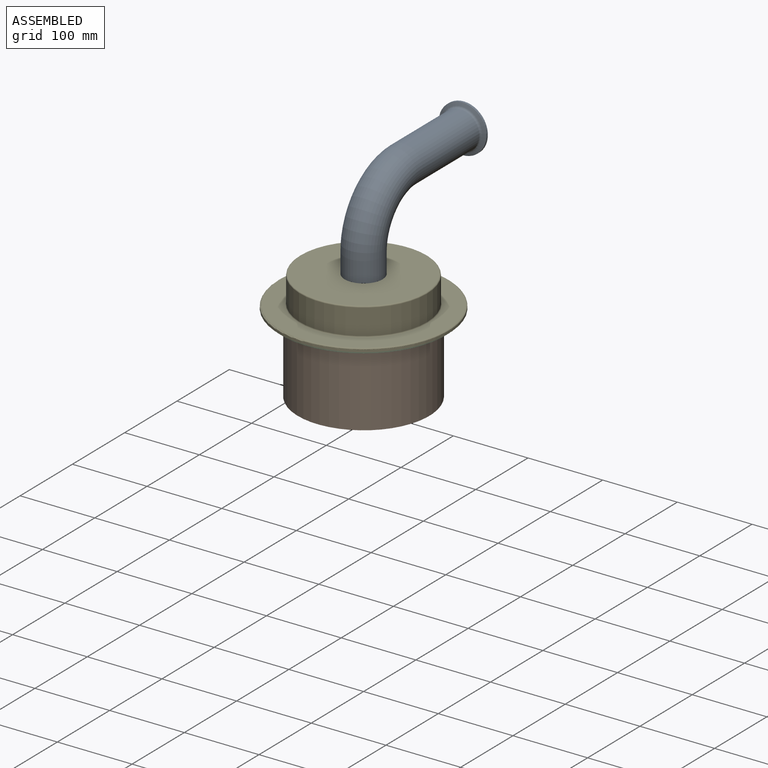
[diagram: assembled view]
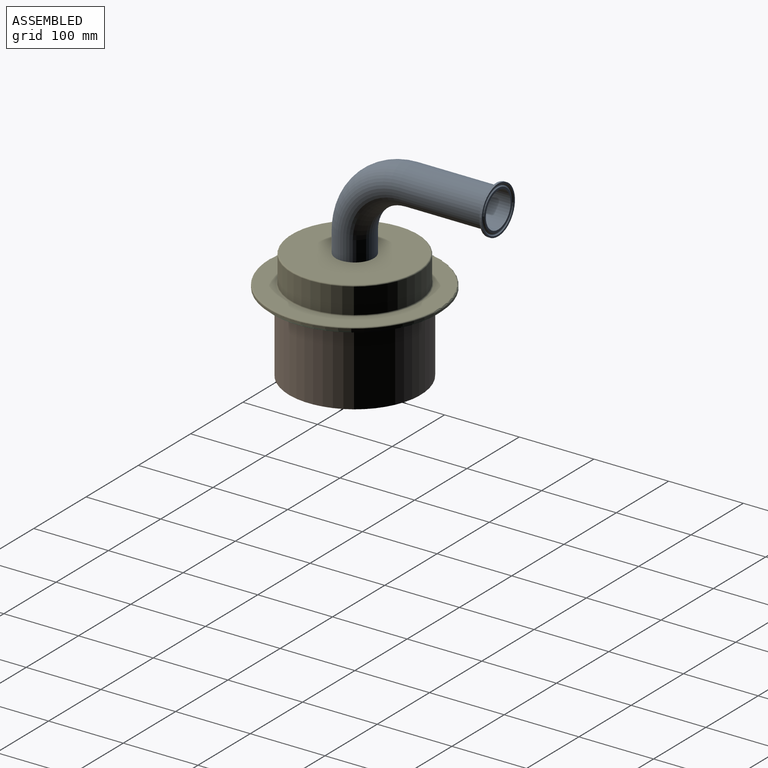
[diagram: assembled view, second angle]
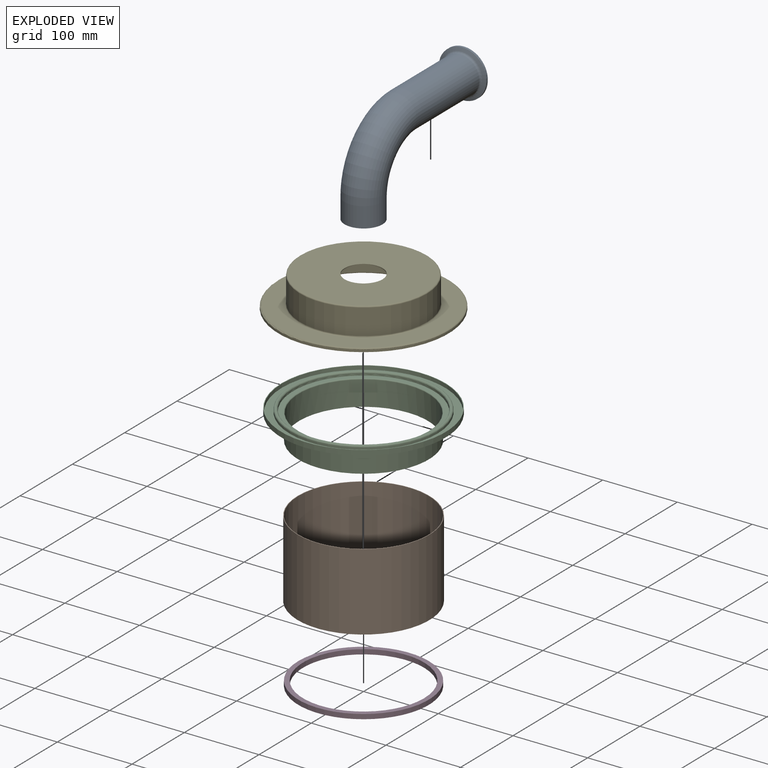
[diagram: exploded view]
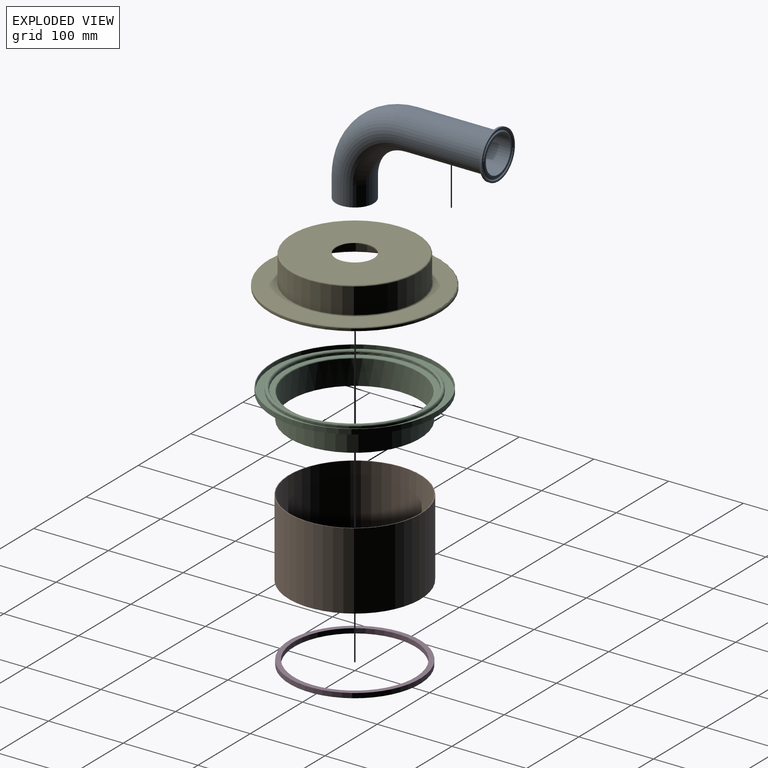
[diagram: exploded view, second angle]
ASSEMBLY  parts=5 mates=5
PART A: 17 faces, bbox 65.3x225.8x136.9 mm
  f0: plane 63.91x63.91mm, normal (0,-1,0), area 350.1mm2, adj f1,f9
  f1: torus R=30.16mm, axis (0,-1,0), area 172.1mm2, adj f0,f2
  f2: cone r=29.43mm half-angle=23deg, axis (0,-1,0), area 78.8mm2, adj f1,f3
  f3: torus R=28.17mm, axis (0,-1,0), area 494.2mm2, adj f2,f4
  f4: cone r=27.07mm half-angle=23deg, axis (0,1,0), area 72.4mm2, adj f3,f5
  f5: torus R=26.18mm, axis (0,-1,0), area 153.8mm2, adj f4,f6
  f6: plane 52.36x52.36mm, normal (0,-1,0), area 381mm2, adj f5,f11
  f7: torus R=28.57mm, axis (0,-1,0), area 636.9mm2, adj f8,f10
  f8: cone r=27.49mm half-angle=70deg, axis (0,-1,0), area 887.1mm2, adj f7,f9
  f9: cylinder r=31.95mm len=63.91mm, axis (0,-1,0), area 571.1mm2, adj f0,f8
  f10: cylinder r=25.4mm len=108.42mm, axis (0,1,0), area 17303.3mm2, adj f7,f15
  f11: cylinder r=23.75mm len=115.88mm, axis (0,1,0), area 17290.8mm2, adj f6,f12
  f12: torus R=76.2mm, axis (1,0,0), area 17860.8mm2, adj f11,f13
  f13: cylinder r=23.75mm len=47.5mm, axis (0,0,1), area 4025.2mm2, adj f12,f14
  f14: plane 50.8x50.8mm, normal (0,0,1), area 254.9mm2, adj f13,f16
  f15: torus R=76.2mm, axis (1,0,0), area 19102.4mm2, adj f10,f16
  f16: cylinder r=25.4mm len=50.8mm, axis (0,0,1), area 4305mm2, adj f14,f15
PART B: 5 faces, bbox 176.4x176.4x103.3 mm
  f0: cylinder r=87.39mm len=174.78mm, axis (0,0,1), area 55786.5mm2, adj f2,f3
  f1: cylinder r=88.21mm len=176.43mm, axis (0,0,1), area 57228.5mm2, adj f2,f4
  f2: plane 176.43x176.43mm, normal (0,0,1), area 455.4mm2, adj f0,f1
  f3: plane 174.78x174.78mm, normal (0,0,1), area 23991.7mm2, adj f0
  f4: plane 176.43x176.43mm, normal (0,0,-1), area 24447.1mm2, adj f1
PART C: 15 faces, bbox 220.2x220.2x39.4 mm
  f0: cylinder r=86.56mm len=173.13mm, axis (0,0,1), area 17959.3mm2, adj f12,f14
  f1: plane 193.17x193.17mm, normal (0,0,1), area 69.3mm2, adj f10,f11
  f2: cylinder r=110.08mm len=220.17mm, axis (0,0,1), area 4655.7mm2, adj f3,f4
  f3: plane 220.17x220.17mm, normal (0,0,-1), area 14079.4mm2, adj f2,f13
  f4: plane 220.17x220.17mm, normal (0,0,1), area 595mm2, adj f2,f6
  f5: cylinder r=98.87mm len=197.74mm, axis (0,0,1), area 1735.7mm2, adj f7,f11
  f6: cylinder r=109.22mm len=218.44mm, axis (0,0,1), area 3486.1mm2, adj f4,f7
  f7: plane 218.44x218.44mm, normal (0,0,1), area 6766.5mm2, adj f5,f6
  f8: cylinder r=94.18mm len=188.37mm, axis (0,0,1), area 1653.4mm2, adj f9,f10
  f9: plane 188.37x188.37mm, normal (0,0,1), area 3631.1mm2, adj f8,f12
  f10: torus R=96.47mm, axis (0,0,-1), area 2143.7mm2, adj f1,f8
  f11: torus R=96.58mm, axis (0,0,-1), area 2211.9mm2, adj f1,f5
  f12: torus R=87.83mm, axis (0,0,1), area 1090.8mm2, adj f0,f9
  f13: cylinder r=87.39mm len=174.78mm, axis (0,0,1), area 17921.4mm2, adj f3,f14
  f14: plane 174.78x174.78mm, normal (0,0,-1), area 451.1mm2, adj f0,f13
PART D: 4 faces, bbox 174.8x174.8x6.4 mm
  f0: cylinder r=81.04mm len=162.08mm, axis (0,0,-1), area 3233.3mm2, adj f2,f3
  f1: cylinder r=87.39mm len=174.78mm, axis (0,0,-1), area 3486.7mm2, adj f2,f3
  f2: plane 174.78x174.78mm, normal (0,0,1), area 3360mm2, adj f0,f1
  f3: plane 174.78x174.78mm, normal (0,0,-1), area 3360mm2, adj f0,f1
PART E: 16 faces, bbox 246.6x246.6x41.9 mm
  f0: plane 166.75x166.75mm, normal (0,0,1), area 19811.9mm2, adj f14,f15
  f1: plane 164.47x164.47mm, normal (0,0,-1), area 19217.2mm2, adj f2,f15
  f2: torus R=82.23mm, axis (0,0,-1), area 1304.3mm2, adj f1,f3
  f3: cylinder r=83.82mm len=167.64mm, axis (0,0,-1), area 17992.2mm2, adj f2,f4
  f4: torus R=85.41mm, axis (0,0,-1), area 1322.3mm2, adj f3,f5
  f5: plane 222.33x222.33mm, normal (0,0,-1), area 15905.2mm2, adj f4,f6
  f6: torus R=111.16mm, axis (0,0,-1), area 1757.5mm2, adj f5,f7
  f7: cylinder r=112.75mm len=225.5mm, axis (0,0,-1), area 1304.6mm2, adj f6,f8
  f8: plane 227.79x227.79mm, normal (0,0,-1), area 813.8mm2, adj f7,f9
  f9: cylinder r=113.89mm len=227.79mm, axis (0,0,-1), area 2135.8mm2, adj f8,f10
  f10: torus R=112.31mm, axis (0,0,-1), area 1775.4mm2, adj f9,f11
  f11: plane 224.61x224.61mm, normal (0,0,1), area 16090.2mm2, adj f10,f12
  f12: torus R=86.55mm, axis (0,0,-1), area 1340.2mm2, adj f11,f13
  f13: cylinder r=84.96mm len=169.93mm, axis (0,0,-1), area 18237.5mm2, adj f12,f14
  f14: torus R=83.38mm, axis (0,0,-1), area 1322.2mm2, adj f0,f13
  f15: cylinder r=25.4mm len=50.8mm, axis (0,0,1), area 182.4mm2, adj f0,f1
PLACE A rot(axis=(1,0,0),180deg) t=(0,192.07,248.91)mm
PLACE B t=(0,0,145.73)mm
PLACE C t=(0,0,145.73)mm
PLACE D t=(0,0,145.73)mm
PLACE E t=(-254,0,145.73)mm
MATE fastened A.f13 <-> E.f15  axis (0,0,-1) through (0,0,145.73)mm
MATE fastened E.f2 <-> C.f2  axis (0,0,-1) through (0,0,107.25)mm
MATE fastened D.f1 <-> B.f0  axis (0,0,-1) through (0,0,-1.08)mm
MATE fastened C.f2 <-> E.f2  axis (0,0,1) through (0,0,107.25)mm
MATE fastened C.f2 <-> B.f1  axis (0,0,-1) through (0,0,100.52)mm
